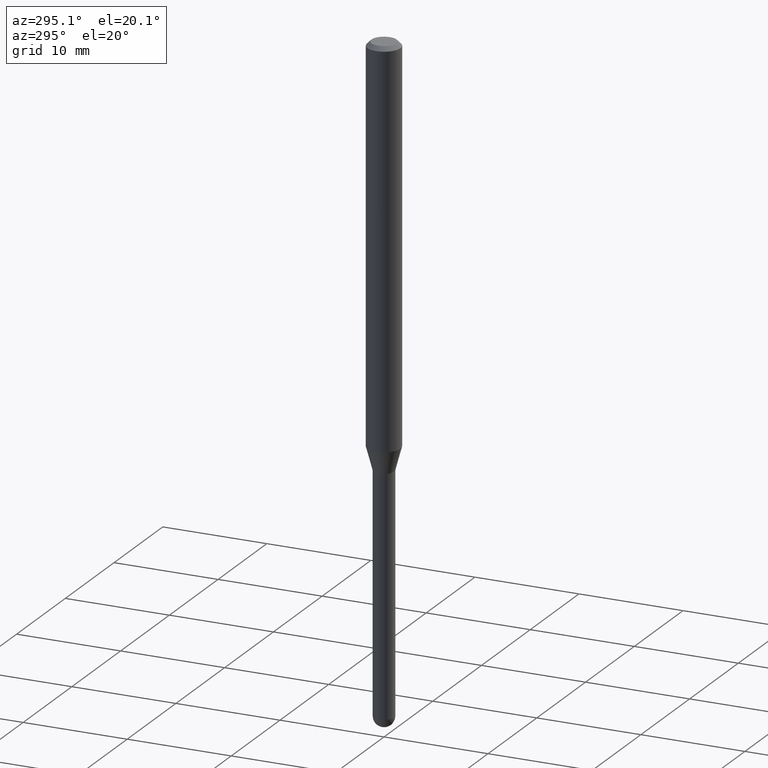
[diagram: clean part render]
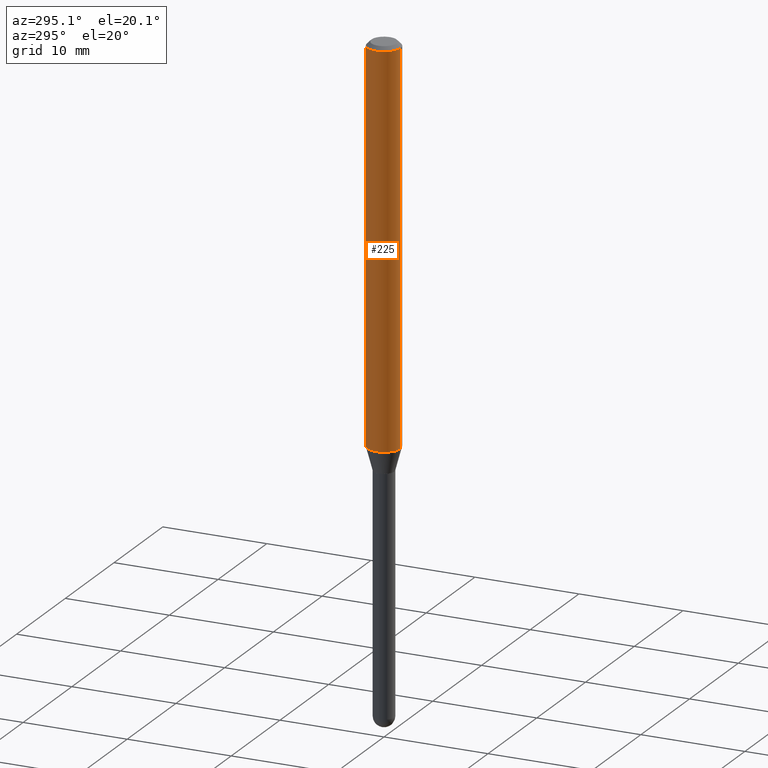
[diagram: same view with one face highlighted and labeled with its STEP entity id]
A machine part, auxiliary view. The second image highlights one B-rep face of the part: STEP entity #225.
In plain terms, the highlighted cylindrical surface (edge-blend (fillet) strip) has radius 1.5875 mm, axis along (-0, 0, 1).
Its self-contained STEP definition (entity closure, byte-faithful):
#4 = EDGE_CURVE ( 'NONE', #69, #130, #79, .T. ) ;
#9 = DIRECTION ( 'NONE',  ( -6.982962677686265922E-15, -1.000000000000000000, 4.370956789862821150E-15 ) ) ;
#47 = VERTEX_POINT ( 'NONE', #354 ) ;
#59 = AXIS2_PLACEMENT_3D ( 'NONE', #386, #195, #9 ) ;
#69 = VERTEX_POINT ( 'NONE', #270 ) ;
#79 = CIRCLE ( 'NONE', #59, 0.06250000000000000000 ) ;
#81 = VECTOR ( 'NONE', #296, 39.37007874015748143 ) ;
#114 = LINE ( 'NONE', #507, #81 ) ;
#129 = VERTEX_POINT ( 'NONE', #313 ) ;
#130 = VERTEX_POINT ( 'NONE', #430 ) ;
#136 = EDGE_CURVE ( 'NONE', #129, #47, #254, .T. ) ;
#165 = DIRECTION ( 'NONE',  ( -6.982962677686265922E-15, -1.000000000000000000, 3.483106191921935554E-15 ) ) ;
#169 = EDGE_LOOP ( 'NONE', ( #193, #398, #443, #426 ) ) ;
#176 = LINE ( 'NONE', #355, #293 ) ;
#193 = ORIENTED_EDGE ( 'NONE', *, *, #317, .F. ) ;
#195 = DIRECTION ( 'NONE',  ( -2.445504629114067359E-29, 3.491430038370002359E-15, 1.000000000000000000 ) ) ;
#225 = ADVANCED_FACE ( 'NONE', ( #336 ), #465, .T. ) ;
#254 = CIRCLE ( 'NONE', #489, 0.06250000000000000000 ) ;
#256 = CARTESIAN_POINT ( 'NONE',  ( 0.000000000000000000, 0.000000000000000000, 0.000000000000000000 ) ) ;
#270 = CARTESIAN_POINT ( 'NONE',  ( 4.440892098500983121E-16, 0.06249999999999480971, -1.476296806022133312 ) ) ;
#293 = VECTOR ( 'NONE', #473, 39.37007874015748143 ) ;
#296 = DIRECTION ( 'NONE',  ( -2.445504629114067359E-29, 3.491430038370001964E-15, 1.000000000000000000 ) ) ;
#313 = CARTESIAN_POINT ( 'NONE',  ( 4.440892098500989038E-16, 0.06249999999999995143, -0.01500000000000022669 ) ) ;
#317 = EDGE_CURVE ( 'NONE', #69, #129, #176, .T. ) ;
#336 = FACE_OUTER_BOUND ( 'NONE', #169, .T. ) ;
#350 = AXIS2_PLACEMENT_3D ( 'NONE', #256, #457, #414 ) ;
#354 = CARTESIAN_POINT ( 'NONE',  ( -4.364351673553912750E-16, -0.06250000000000005551, -0.01499999999999979128 ) ) ;
#355 = CARTESIAN_POINT ( 'NONE',  ( 4.440892098500625669E-16, 0.06250000000000000000, -2.182143773981251474E-16 ) ) ;
#357 = DIRECTION ( 'NONE',  ( -2.445504629114067359E-29, 3.491430038370002359E-15, 1.000000000000000000 ) ) ;
#386 = CARTESIAN_POINT ( 'NONE',  ( 3.610290673073439047E-29, -5.154387014095367711E-15, -1.476296806022132868 ) ) ;
#389 = EDGE_CURVE ( 'NONE', #130, #47, #114, .T. ) ;
#398 = ORIENTED_EDGE ( 'NONE', *, *, #4, .T. ) ;
#414 = DIRECTION ( 'NONE',  ( -6.982962677686265922E-15, -1.000000000000000000, 3.491430038370002359E-15 ) ) ;
#426 = ORIENTED_EDGE ( 'NONE', *, *, #136, .F. ) ;
#430 = CARTESIAN_POINT ( 'NONE',  ( -4.364351673553557762E-16, -0.06250000000000519029, -1.476296806022132646 ) ) ;
#439 = CARTESIAN_POINT ( 'NONE',  ( 3.668256943671103088E-31, -5.237145057555006792E-17, -0.01500000000000000812 ) ) ;
#443 = ORIENTED_EDGE ( 'NONE', *, *, #389, .T. ) ;
#457 = DIRECTION ( 'NONE',  ( -2.445504629114067359E-29, 3.491430038370002359E-15, 1.000000000000000000 ) ) ;
#465 = CYLINDRICAL_SURFACE ( 'NONE', #350, 0.06250000000000000000 ) ;
#473 = DIRECTION ( 'NONE',  ( -2.445504629114067359E-29, 3.491430038370001964E-15, 1.000000000000000000 ) ) ;
#489 = AXIS2_PLACEMENT_3D ( 'NONE', #439, #357, #165 ) ;
#507 = CARTESIAN_POINT ( 'NONE',  ( -4.364351673553916201E-16, -0.06250000000000000000, 2.182143773981251474E-16 ) ) ;